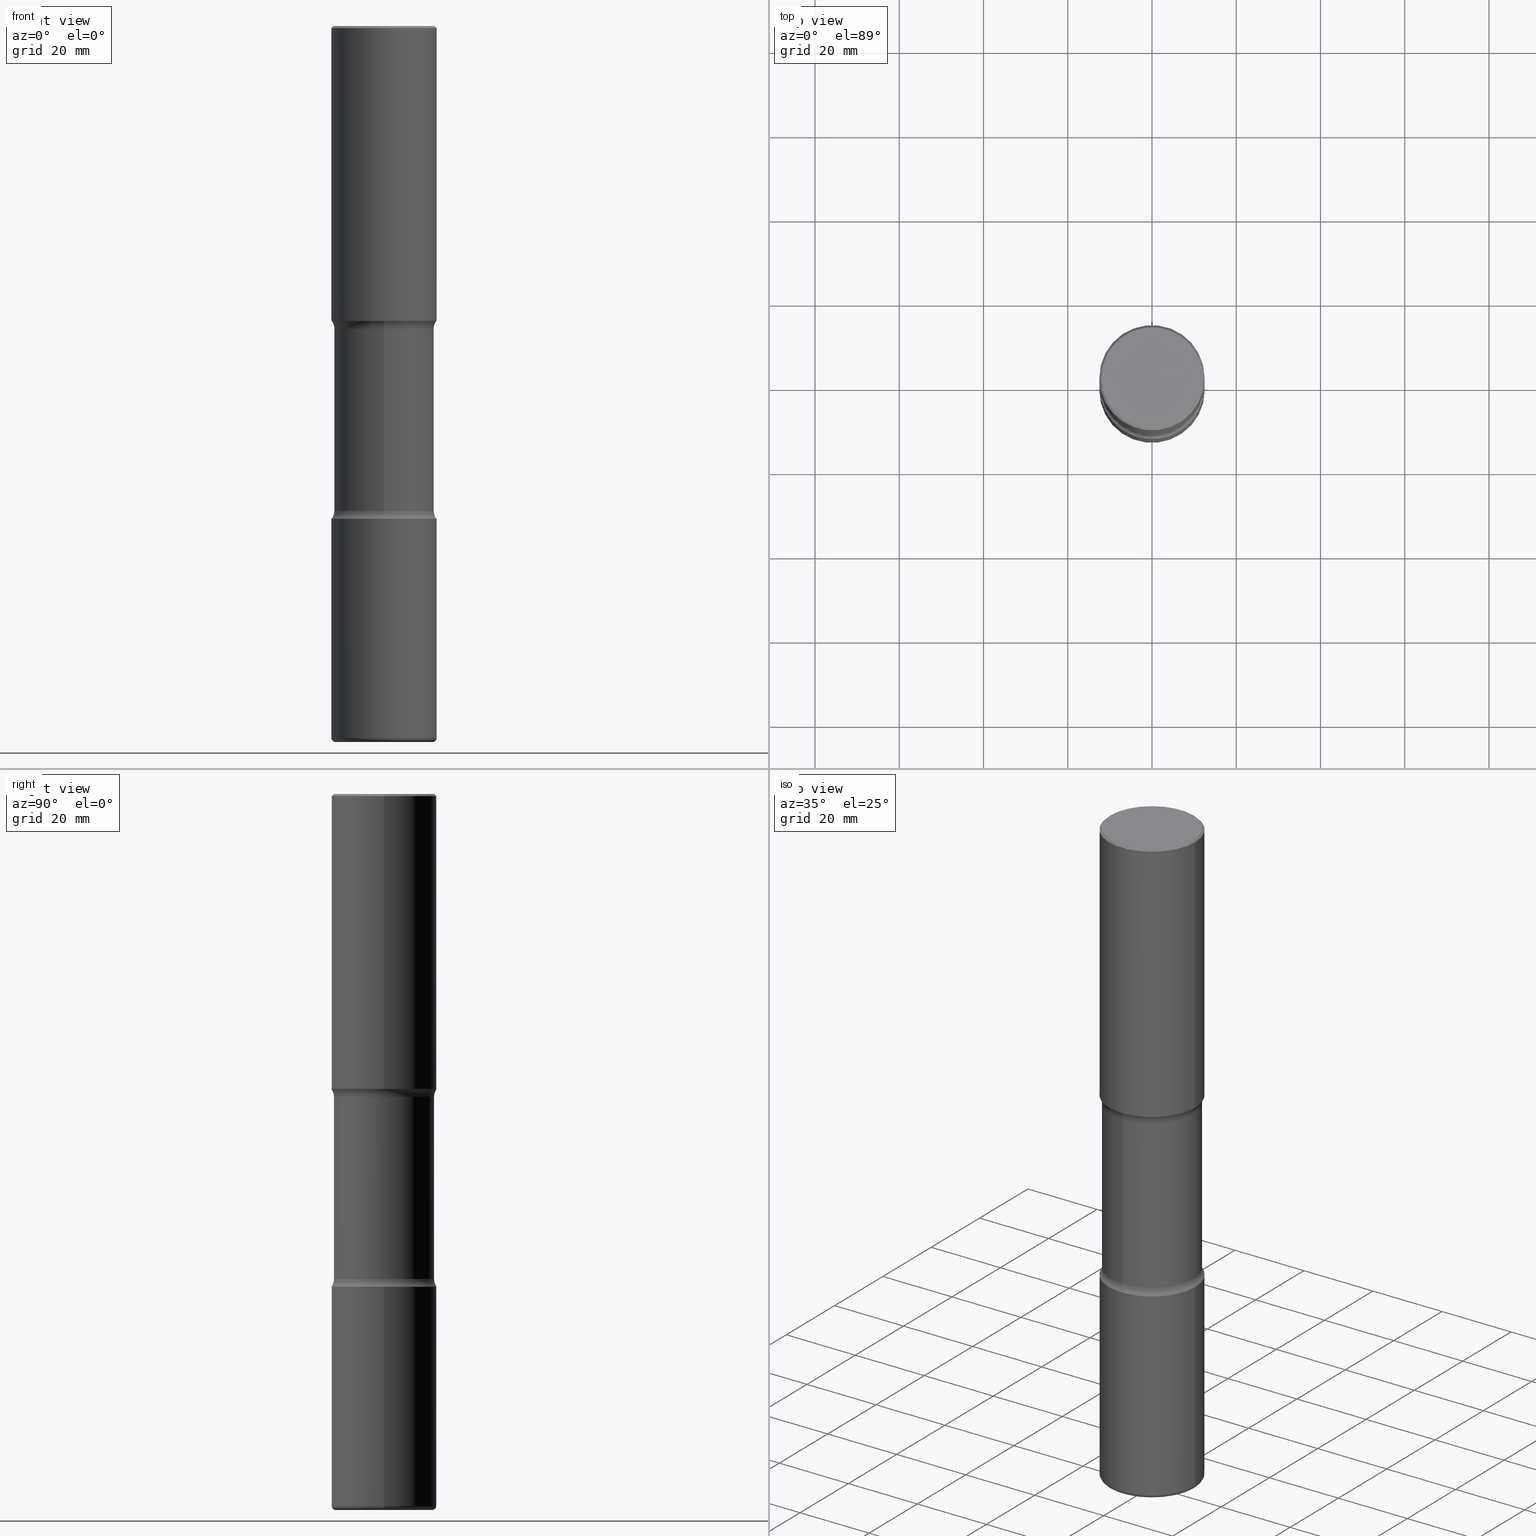
[diagram: canonical four-view strip — front | top / right | iso, engineering-drawing reading convention]
A machine part, canonical four-view strip (front | top / right | iso — engineering-drawing reading convention). The complete STEP part file that produces these views, byte-faithful:
ISO-10303-21;
HEADER;
FILE_DESCRIPTION (( 'STEP AP203' ),
    '1' );
FILE_NAME ('47768.STEP',
    '2024-03-02T08:52:58',
    ( '' ),
    ( '' ),
    'SwSTEP 2.0',
    'SolidWorks 2023',
    '' );
FILE_SCHEMA (( 'CONFIG_CONTROL_DESIGN' ));
ENDSEC;

DATA;
#1 = DATE_TIME_ROLE ( 'classification_date' ) ;
#2 = CARTESIAN_POINT ( 'NONE',  ( -3.376394089603194759E-15, -0.4921500000000101349, -2.755899999999997352 ) ) ;
#3 = DATE_AND_TIME ( #135, #246 ) ;
#4 = CARTESIAN_POINT ( 'NONE',  ( -3.291838451780614217E-15, -0.4675000000000157918, -4.531768949423744530 ) ) ;
#5 = PERSON_AND_ORGANIZATION_ROLE ( 'creator' ) ;
#6 = CARTESIAN_POINT ( 'NONE',  ( -3.131554243005659264E-46, 4.471029511141341874E-32, 1.280553747030123384E-17 ) ) ;
#7 = EDGE_CURVE ( 'NONE', #451, #13, #105, .T. ) ;
#8 = TOROIDAL_SURFACE ( 'NONE', #501, 0.5925000000000002487, 0.1250000000000001943 ) ;
#9 = COORDINATED_UNIVERSAL_TIME_OFFSET ( 5, 0, .BEHIND. ) ;
#10 = CC_DESIGN_SECURITY_CLASSIFICATION ( #46, ( #463 ) ) ;
#11 = DIRECTION ( 'NONE',  ( -1.000000000000000000, 6.982962677686265922E-15, -4.876176775795935793E-29 ) ) ;
#12 = ADVANCED_FACE ( 'NONE', ( #78 ), #295, .T. ) ;
#13 = VERTEX_POINT ( 'NONE', #507 ) ;
#14 = EDGE_CURVE ( 'NONE', #126, #204, #358, .T. ) ;
#15 = PLANE ( 'NONE',  #419 ) ;
#16 = AXIS2_PLACEMENT_3D ( 'NONE', #170, #261, #41 ) ;
#17 = EDGE_CURVE ( 'NONE', #376, #290, #490, .T. ) ;
#18 = FACE_OUTER_BOUND ( 'NONE', #518, .T. ) ;
#19 = AXIS2_PLACEMENT_3D ( 'NONE', #296, #161, #541 ) ;
#20 = VERTEX_POINT ( 'NONE', #547 ) ;
#21 = CARTESIAN_POINT ( 'NONE',  ( -0.4921499999999999209, 3.366835455046432084E-15, -0.02000000000000006981 ) ) ;
#22 = CARTESIAN_POINT ( 'NONE',  ( 1.636727817291649966E-28, -2.336813545274328780E-14, -6.692899999999999849 ) ) ;
#23 = CARTESIAN_POINT ( 'NONE',  ( -0.4721499999999998476, 3.331920641658000829E-15, 1.280553747027805488E-17 ) ) ;
#24 = ORIENTED_EDGE ( 'NONE', *, *, #370, .F. ) ;
#25 = FACE_OUTER_BOUND ( 'NONE', #196, .T. ) ;
#26 = AXIS2_PLACEMENT_3D ( 'NONE', #193, #394, #234 ) ;
#27 = ORIENTED_EDGE ( 'NONE', *, *, #231, .F. ) ;
#28 = DIRECTION ( 'NONE',  ( 6.982962677686266711E-15, 1.000000000000000000, -3.506115072082477581E-15 ) ) ;
#29 = EDGE_LOOP ( 'NONE', ( #545, #459 ) ) ;
#30 = DIRECTION ( 'NONE',  ( -2.445468806185136597E-29, 3.491481338843145583E-15, 1.000000000000000000 ) ) ;
#31 = DIRECTION ( 'NONE',  ( -2.445468806185136597E-29, 3.491481338843145583E-15, 1.000000000000000000 ) ) ;
#32 = ORIENTED_EDGE ( 'NONE', *, *, #235, .T. ) ;
#33 = CARTESIAN_POINT ( 'NONE',  ( 0.000000000000000000, 0.000000000000000000, 0.000000000000000000 ) ) ;
#34 = CLOSED_SHELL ( 'NONE', ( #469, #356, #386, #140, #85, #212 ) ) ;
#35 = CC_DESIGN_PERSON_AND_ORGANIZATION_ASSIGNMENT ( #522, #141, ( #46 ) ) ;
#36 = AXIS2_PLACEMENT_3D ( 'NONE', #154, #195, #188 ) ;
#37 = EDGE_LOOP ( 'NONE', ( #416, #168, #206, #480 ) ) ;
#38 = LOCAL_TIME ( 3, 52, 58.00000000000000000, #379 ) ;
#39 = MECHANICAL_CONTEXT ( 'NONE', #494, 'mechanical' ) ;
#40 = CARTESIAN_POINT ( 'NONE',  ( 1.107980415843712738E-28, -1.582616033701247086E-14, -4.531768949423746307 ) ) ;
#41 = DIRECTION ( 'NONE',  ( 6.982962677686266711E-15, 1.000000000000000000, -3.330506545156064285E-15 ) ) ;
#42 = EDGE_CURVE ( 'NONE', #325, #376, #415, .T. ) ;
#43 = CALENDAR_DATE ( 2024, 2, 3 ) ;
#44 = CARTESIAN_POINT ( 'NONE',  ( -3.376394089603147821E-15, -0.4921500000000163522, -4.606299999999997397 ) ) ;
#45 = CIRCLE ( 'NONE', #137, 0.1250000000000000278 ) ;
#46 = SECURITY_CLASSIFICATION ( '', '', #477 ) ;
#47 = COORDINATED_UNIVERSAL_TIME_OFFSET ( 5, 0, .BEHIND. ) ;
#48 = LINE ( 'NONE', #387, #521 ) ;
#49 = APPROVAL_ROLE ( '' ) ;
#50 = CARTESIAN_POINT ( 'NONE',  ( 0.4921500000000002539, -1.305883850354111701E-14, -2.755899999999998240 ) ) ;
#51 = ORIENTED_EDGE ( 'NONE', *, *, #333, .F. ) ;
#52 = SHAPE_DEFINITION_REPRESENTATION ( #281, #361 ) ;
#53 = EDGE_LOOP ( 'NONE', ( #86, #369 ) ) ;
#54 = DIRECTION ( 'NONE',  ( -2.445468806185136597E-29, 3.491481338843145583E-15, 1.000000000000000000 ) ) ;
#55 = CC_DESIGN_PERSON_AND_ORGANIZATION_ASSIGNMENT ( #214, #366, ( #301 ) ) ;
#56 = CIRCLE ( 'NONE', #435, 0.4921500000000002539 ) ;
#57 = FACE_OUTER_BOUND ( 'NONE', #29, .T. ) ;
#58 = DIRECTION ( 'NONE',  ( 1.000000000000000000, -6.982962677686265922E-15, 4.876006802227160734E-29 ) ) ;
#59 = DIRECTION ( 'NONE',  ( 6.982962677686266711E-15, 1.000000000000000000, -3.443533294061476764E-15 ) ) ;
#60 = AXIS2_PLACEMENT_3D ( 'NONE', #443, #149, #59 ) ;
#61 = FACE_OUTER_BOUND ( 'NONE', #73, .T. ) ;
#62 = AXIS2_PLACEMENT_3D ( 'NONE', #63, #274, #242 ) ;
#63 = CARTESIAN_POINT ( 'NONE',  ( 3.297005828269569180E-15, 0.4721499999999998476, -1.642100145399640064E-15 ) ) ;
#64 = EDGE_LOOP ( 'NONE', ( #458, #334 ) ) ;
#65 = CARTESIAN_POINT ( 'NONE',  ( 0.4921500000000000874, -3.436665081823296565E-15, 2.399810400207970163E-29 ) ) ;
#66 = APPROVAL ( #93, 'UNSPECIFIED' ) ;
#67 = EDGE_LOOP ( 'NONE', ( #502, #438, #441, #550 ) ) ;
#68 = DIRECTION ( 'NONE',  ( -2.445468806185136877E-29, 3.491481338843145188E-15, 1.000000000000000000 ) ) ;
#69 = TOROIDAL_SURFACE ( 'NONE', #297, 0.4527500000000003189, 0.03940000000000026814 ) ;
#70 = AXIS2_PLACEMENT_3D ( 'NONE', #400, #320, #493 ) ;
#71 = CARTESIAN_POINT ( 'NONE',  ( 1.643714159041834644E-28, -2.326808706250185533E-14, -6.692899999999998961 ) ) ;
#72 = EDGE_LOOP ( 'NONE', ( #279, #353, #455, #255 ) ) ;
#73 = EDGE_LOOP ( 'NONE', ( #424, #76, #51, #233 ) ) ;
#74 = EDGE_CURVE ( 'NONE', #13, #164, #482, .T. ) ;
#75 = CARTESIAN_POINT ( 'NONE',  ( -4.064845063679523241E-15, -0.5925000000000161249, -4.531768949423743642 ) ) ;
#76 = ORIENTED_EDGE ( 'NONE', *, *, #525, .T. ) ;
#77 = DIRECTION ( 'NONE',  ( 6.982962677686266711E-15, 1.000000000000000000, -3.443533294061476764E-15 ) ) ;
#78 = FACE_OUTER_BOUND ( 'NONE', #163, .T. ) ;
#79 = ORIENTED_EDGE ( 'NONE', *, *, #445, .F. ) ;
#80 = DIRECTION ( 'NONE',  ( 0.000000000000000000, 0.000000000000000000, 1.000000000000000000 ) ) ;
#81 = DIRECTION ( 'NONE',  ( 1.000000000000000000, -6.982962677686264344E-15, 0.000000000000000000 ) ) ;
#82 = CIRCLE ( 'NONE', #393, 0.4921499999999999209 ) ;
#83 = AXIS2_PLACEMENT_3D ( 'NONE', #157, #555, #77 ) ;
#84 = CARTESIAN_POINT ( 'NONE',  ( 0.4721499999999998476, -3.342703923013974974E-15, 1.280553747032445131E-17 ) ) ;
#85 = ADVANCED_FACE ( 'NONE', ( #215 ), #552, .T. ) ;
#86 = ORIENTED_EDGE ( 'NONE', *, *, #367, .F. ) ;
#87 = EDGE_LOOP ( 'NONE', ( #466, #492, #293, #332 ) ) ;
#88 = PERSON ( 'UNSPECIFIED', 'UNSPECIFIED', 'UNSPECIFIED', ('UNSPECIFIED'), ('UNSPECIFIED'), ('UNSPECIFIED') ) ;
#89 = DATE_AND_TIME ( #310, #38 ) ;
#90 = DIRECTION ( 'NONE',  ( 1.000000000000000000, -6.982962677686265922E-15, 0.000000000000000000 ) ) ;
#91 = CLOSED_SHELL ( 'NONE', ( #442, #422, #531, #411, #106, #201 ) ) ;
#92 = AXIS2_PLACEMENT_3D ( 'NONE', #71, #253, #167 ) ;
#93 = APPROVAL_STATUS ( 'not_yet_approved' ) ;
#94 = CARTESIAN_POINT ( 'NONE',  ( -0.4921500000000000874, 3.496936074043333686E-15, -2.420853904668952350E-29 ) ) ;
#95 = ORIENTED_EDGE ( 'NONE', *, *, #487, .F. ) ;
#96 = CARTESIAN_POINT ( 'NONE',  ( 6.862271303354788236E-29, -9.967546637882530720E-15, -2.830431050576252883 ) ) ;
#97 = VERTEX_POINT ( 'NONE', #84 ) ;
#98 = DIRECTION ( 'NONE',  ( 1.000000000000000000, -6.982962677686270655E-15, 0.000000000000000000 ) ) ;
#99 = AXIS2_PLACEMENT_3D ( 'NONE', #202, #479, #185 ) ;
#100 = CARTESIAN_POINT ( 'NONE',  ( 1.107980415843712738E-28, -1.582616033701247086E-14, -4.531768949423746307 ) ) ;
#101 = EDGE_CURVE ( 'NONE', #251, #243, #538, .T. ) ;
#102 = DIRECTION ( 'NONE',  ( 2.478950746902978790E-29, -3.443533294061476764E-15, -1.000000000000000000 ) ) ;
#103 = CARTESIAN_POINT ( 'NONE',  ( 5.087199727460733624E-29, -3.952184980882990303E-14, -6.692899999999999849 ) ) ;
#104 = MANIFOLD_SOLID_BREP ( 'Body-Move/Copy2[1]', #34 ) ;
#105 = CIRCLE ( 'NONE', #418, 0.4527500000000002633 ) ;
#106 = ADVANCED_FACE ( 'NONE', ( #426 ), #511, .F. ) ;
#107 = CIRCLE ( 'NONE', #381, 0.4921500000000002539 ) ;
#108 = CARTESIAN_POINT ( 'NONE',  ( -0.4527500000000002633, -1.994239411526948461E-14, -6.692899999999999849 ) ) ;
#109 = ORIENTED_EDGE ( 'NONE', *, *, #509, .T. ) ;
#110 = EDGE_CURVE ( 'NONE', #13, #451, #315, .T. ) ;
#111 = DIRECTION ( 'NONE',  ( 2.438088387897960049E-29, -3.491481338843145188E-15, -1.000000000000000000 ) ) ;
#112 = ORIENTED_EDGE ( 'NONE', *, *, #445, .T. ) ;
#113 = DIRECTION ( 'NONE',  ( -6.982962677686266711E-15, -1.000000000000000000, 3.491481338843145583E-15 ) ) ;
#114 = ADVANCED_FACE ( 'NONE', ( #409 ), #8, .F. ) ;
#115 = ORIENTED_EDGE ( 'NONE', *, *, #119, .T. ) ;
#116 = DIRECTION ( 'NONE',  ( -6.982962677686269077E-15, -1.000000000000000000, 0.000000000000000000 ) ) ;
#117 = AXIS2_PLACEMENT_3D ( 'NONE', #282, #299, #162 ) ;
#118 = DIRECTION ( 'NONE',  ( -2.438088387897960049E-29, 3.491481338843145188E-15, 1.000000000000000000 ) ) ;
#119 = EDGE_CURVE ( 'NONE', #251, #305, #178, .T. ) ;
#120 = VERTEX_POINT ( 'NONE', #326 ) ;
#121 = CARTESIAN_POINT ( 'NONE',  ( 0.000000000000000000, 0.000000000000000000, 0.000000000000000000 ) ) ;
#122 = DIRECTION ( 'NONE',  ( 6.982962677686265133E-15, 1.000000000000000000, -3.443533294061477159E-15 ) ) ;
#123 = ORIENTED_EDGE ( 'NONE', *, *, #101, .T. ) ;
#124 = ORIENTED_EDGE ( 'NONE', *, *, #184, .T. ) ;
#125 = CARTESIAN_POINT ( 'NONE',  ( 4.890937612370289799E-31, -6.982962677686315028E-17, -0.02000000000000006981 ) ) ;
#126 = VERTEX_POINT ( 'NONE', #158 ) ;
#127 = DIRECTION ( 'NONE',  ( -2.445468806185136877E-29, 3.491481338843145188E-15, 1.000000000000000000 ) ) ;
#128 = TOROIDAL_SURFACE ( 'NONE', #351, 0.4527500000000003189, 0.03940000000000026814 ) ;
#129 = CC_DESIGN_APPROVAL ( #66, ( #463 ) ) ;
#130 = APPROVAL_ROLE ( '' ) ;
#131 = CARTESIAN_POINT ( 'NONE',  ( 3.436665081823409767E-15, 0.4921499999999841002, -4.606300000000000949 ) ) ;
#132 = DIRECTION ( 'NONE',  ( 2.478950746902979070E-29, -3.443533294061476764E-15, -1.000000000000000000 ) ) ;
#133 = ORIENTED_EDGE ( 'NONE', *, *, #42, .F. ) ;
#134 = EDGE_CURVE ( 'NONE', #305, #359, #559, .T. ) ;
#135 = CALENDAR_DATE ( 2024, 2, 3 ) ;
#136 = LINE ( 'NONE', #341, #529 ) ;
#137 = AXIS2_PLACEMENT_3D ( 'NONE', #307, #471, #430 ) ;
#138 = ADVANCED_FACE ( 'NONE', ( #456 ), #378, .T. ) ;
#139 = VECTOR ( 'NONE', #68, 39.37007874015748143 ) ;
#140 = ADVANCED_FACE ( 'NONE', ( #465 ), #69, .T. ) ;
#141 = PERSON_AND_ORGANIZATION_ROLE ( 'classification_officer' ) ;
#142 = CARTESIAN_POINT ( 'NONE',  ( 0.4921500000000002539, -1.951947557293647774E-14, -4.606299999999999173 ) ) ;
#143 = DIRECTION ( 'NONE',  ( -2.445468806185136597E-29, 3.491481338843145583E-15, 1.000000000000000000 ) ) ;
#144 = ORIENTED_EDGE ( 'NONE', *, *, #184, .F. ) ;
#145 = PLANE ( 'NONE',  #62 ) ;
#146 = CIRCLE ( 'NONE', #549, 0.4721499999999998476 ) ;
#147 = CIRCLE ( 'NONE', #322, 0.1250000000000000278 ) ;
#148 = DIRECTION ( 'NONE',  ( -2.445468806185136597E-29, 3.491481338843145583E-15, 1.000000000000000000 ) ) ;
#149 = DIRECTION ( 'NONE',  ( 2.478950746902978790E-29, -3.443533294061476764E-15, -1.000000000000000000 ) ) ;
#150 = CYLINDRICAL_SURFACE ( 'NONE', #70, 0.4921500000000000874 ) ;
#151 = EDGE_LOOP ( 'NONE', ( #496, #115, #245, #270 ) ) ;
#152 = EDGE_CURVE ( 'NONE', #120, #164, #406, .T. ) ;
#153 = AXIS2_PLACEMENT_3D ( 'NONE', #336, #118, #248 ) ;
#154 = CARTESIAN_POINT ( 'NONE',  ( 1.627092670195280394E-28, -2.323057108799286859E-14, -6.653499999999999304 ) ) ;
#155 = CIRCLE ( 'NONE', #316, 0.1250000000000001665 ) ;
#156 = ORIENTED_EDGE ( 'NONE', *, *, #191, .T. ) ;
#157 = CARTESIAN_POINT ( 'NONE',  ( 6.826348879337702763E-29, -1.001898959365239917E-14, -2.830431050576252883 ) ) ;
#158 = CARTESIAN_POINT ( 'NONE',  ( -0.4921500000000002539, -1.349065450204005425E-15, -2.755899999999998240 ) ) ;
#159 = DESIGN_CONTEXT ( 'detailed design', #180, 'design' ) ;
#160 = VERTEX_POINT ( 'NONE', #2 ) ;
#161 = DIRECTION ( 'NONE',  ( 2.478950746902978790E-29, -3.443533294061476764E-15, -1.000000000000000000 ) ) ;
#162 = DIRECTION ( 'NONE',  ( 1.000000000000000000, -6.982962677686266711E-15, 0.000000000000000000 ) ) ;
#163 = EDGE_LOOP ( 'NONE', ( #171, #446, #79, #144 ) ) ;
#164 = VERTEX_POINT ( 'NONE', #222 ) ;
#165 = VECTOR ( 'NONE', #392, 39.37007874015748143 ) ;
#166 = APPROVAL_PERSON_ORGANIZATION ( #229, #258, #49 ) ;
#167 = DIRECTION ( 'NONE',  ( 6.982962677686265922E-15, 1.000000000000000000, -2.337410048054985186E-15 ) ) ;
#168 = ORIENTED_EDGE ( 'NONE', *, *, #402, .F. ) ;
#169 = LENGTH_MEASURE_WITH_UNIT ( LENGTH_MEASURE( 0.02539999999999999897 ), #504 );
#170 = CARTESIAN_POINT ( 'NONE',  ( 1.126456296193059450E-28, -1.608281049111318039E-14, -4.606299999999999173 ) ) ;
#171 = ORIENTED_EDGE ( 'NONE', *, *, #402, .T. ) ;
#172 = EDGE_CURVE ( 'NONE', #126, #376, #431, .T. ) ;
#173 = DIRECTION ( 'NONE',  ( 2.478950746902978790E-29, -3.443533294061476764E-15, -1.000000000000000000 ) ) ;
#174 = EDGE_CURVE ( 'NONE', #20, #200, #107, .T. ) ;
#175 = PERSON_AND_ORGANIZATION ( #88, #523 ) ;
#176 = DIRECTION ( 'NONE',  ( -2.445468806185136597E-29, 3.491481338843145583E-15, 1.000000000000000000 ) ) ;
#177 = CIRCLE ( 'NONE', #197, 0.4721499999999998476 ) ;
#178 = CIRCLE ( 'NONE', #209, 0.1250000000000001665 ) ;
#179 = APPROVAL_DATE_TIME ( #89, #464 ) ;
#180 = APPLICATION_CONTEXT ( 'configuration controlled 3d designs of mechanical parts and assemblies' ) ;
#181 = DIRECTION ( 'NONE',  ( 1.000000000000000000, -6.982962677686265922E-15, 4.876006802227160734E-29 ) ) ;
#182 = EDGE_LOOP ( 'NONE', ( #495, #417, #124, #284 ) ) ;
#183 = DIRECTION ( 'NONE',  ( 2.438088387897960049E-29, -3.491481338843145188E-15, -1.000000000000000000 ) ) ;
#184 = EDGE_CURVE ( 'NONE', #192, #359, #225, .T. ) ;
#185 = DIRECTION ( 'NONE',  ( 1.000000000000000000, -6.982962677686262766E-15, 0.000000000000000000 ) ) ;
#186 = CC_DESIGN_APPROVAL ( #464, ( #46 ) ) ;
#187 = DIRECTION ( 'NONE',  ( -2.445468806185136877E-29, 3.491481338843145188E-15, 1.000000000000000000 ) ) ;
#188 = DIRECTION ( 'NONE',  ( 1.000000000000000000, -6.982962677686262766E-15, 0.000000000000000000 ) ) ;
#189 = VECTOR ( 'NONE', #368, 39.37007874015748143 ) ;
#190 = DIRECTION ( 'NONE',  ( 6.982962677686266711E-15, 1.000000000000000000, -3.506115072082477581E-15 ) ) ;
#191 = EDGE_CURVE ( 'NONE', #97, #325, #146, .T. ) ;
#192 = VERTEX_POINT ( 'NONE', #515 ) ;
#193 = CARTESIAN_POINT ( 'NONE',  ( 1.103460862120198560E-28, -1.589088291870342293E-14, -4.531768949423746307 ) ) ;
#194 = DIRECTION ( 'NONE',  ( -2.445468806185136597E-29, 3.491481338843145583E-15, 1.000000000000000000 ) ) ;
#195 = DIRECTION ( 'NONE',  ( -2.445468806185136597E-29, 3.491481338843145583E-15, 1.000000000000000000 ) ) ;
#196 = EDGE_LOOP ( 'NONE', ( #512, #24, #410, #289 ) ) ;
#197 = AXIS2_PLACEMENT_3D ( 'NONE', #530, #148, #58 ) ;
#198 = DIRECTION ( 'NONE',  ( -1.000000000000000000, 7.105427357600976615E-15, 0.000000000000000000 ) ) ;
#199 = AXIS2_PLACEMENT_3D ( 'NONE', #238, #536, #483 ) ;
#200 = VERTEX_POINT ( 'NONE', #142 ) ;
#201 = ADVANCED_FACE ( 'NONE', ( #311 ), #389, .T. ) ;
#202 = CARTESIAN_POINT ( 'NONE',  ( 1.627092670195280394E-28, -2.323057108799286859E-14, -6.653499999999999304 ) ) ;
#203 = UNCERTAINTY_MEASURE_WITH_UNIT (LENGTH_MEASURE( 1.000000000000000082E-05 ), #287, 'distance_accuracy_value', 'NONE');
#204 = VERTEX_POINT ( 'NONE', #50 ) ;
#205 = DIRECTION ( 'NONE',  ( 1.000000000000000000, -6.982962677686265133E-15, 4.883557194083112901E-29 ) ) ;
#206 = ORIENTED_EDGE ( 'NONE', *, *, #318, .T. ) ;
#207 = EDGE_LOOP ( 'NONE', ( #254, #508 ) ) ;
#208 = CARTESIAN_POINT ( 'NONE',  ( 0.4921500000000002539, -3.436665081823297749E-15, 2.399810400207971004E-29 ) ) ;
#209 = AXIS2_PLACEMENT_3D ( 'NONE', #75, #292, #421 ) ;
#210 =( GEOMETRIC_REPRESENTATION_CONTEXT ( 3 ) GLOBAL_UNCERTAINTY_ASSIGNED_CONTEXT ( ( #203 ) ) GLOBAL_UNIT_ASSIGNED_CONTEXT ( ( #287, #335, #453 ) ) REPRESENTATION_CONTEXT ( 'NONE', 'WORKASPACE' ) );
#211 = CARTESIAN_POINT ( 'NONE',  ( 1.636727817291649966E-28, -2.336813545274328780E-14, -6.692899999999999849 ) ) ;
#212 = ADVANCED_FACE ( 'NONE', ( #558 ), #230, .F. ) ;
#213 = EDGE_LOOP ( 'NONE', ( #535, #543, #444, #112 ) ) ;
#214 = PERSON_AND_ORGANIZATION ( #88, #523 ) ;
#215 = FACE_OUTER_BOUND ( 'NONE', #497, .T. ) ;
#216 = CC_DESIGN_DATE_AND_TIME_ASSIGNMENT ( #557, #1, ( #46 ) ) ;
#217 = CC_DESIGN_PERSON_AND_ORGANIZATION_ASSIGNMENT ( #391, #306, ( #463 ) ) ;
#218 = DIRECTION ( 'NONE',  ( -2.445468806185136597E-29, 3.491481338843145583E-15, 1.000000000000000000 ) ) ;
#219 = DIMENSIONAL_EXPONENTS ( 1.000000000000000000, 0.000000000000000000, 0.000000000000000000, 0.000000000000000000, 0.000000000000000000, 0.000000000000000000, 0.000000000000000000 ) ;
#220 = EDGE_CURVE ( 'NONE', #413, #192, #272, .T. ) ;
#221 = DATE_AND_TIME ( #467, #286 ) ;
#222 = CARTESIAN_POINT ( 'NONE',  ( 0.4921500000000003650, -2.666723616981616910E-14, -6.653499999999999304 ) ) ;
#223 = VECTOR ( 'NONE', #187, 39.37007874015748143 ) ;
#224 = TOROIDAL_SURFACE ( 'NONE', #83, 0.5924999999999999156, 0.1250000000000000278 ) ;
#225 = LINE ( 'NONE', #384, #165 ) ;
#226 = ORIENTED_EDGE ( 'NONE', *, *, #370, .T. ) ;
#227 = PERSON_AND_ORGANIZATION ( #88, #523 ) ;
#228 = DIRECTION ( 'NONE',  ( 2.478950746902978790E-29, -3.443533294061476764E-15, -1.000000000000000000 ) ) ;
#229 = PERSON_AND_ORGANIZATION ( #88, #523 ) ;
#230 = PLANE ( 'NONE',  #484 ) ;
#231 = EDGE_CURVE ( 'NONE', #290, #376, #82, .T. ) ;
#232 = AXIS2_PLACEMENT_3D ( 'NONE', #40, #500, #28 ) ;
#233 = ORIENTED_EDGE ( 'NONE', *, *, #74, .F. ) ;
#234 = DIRECTION ( 'NONE',  ( 6.982962677686265133E-15, 1.000000000000000000, -3.443533294061477159E-15 ) ) ;
#235 = EDGE_CURVE ( 'NONE', #120, #20, #433, .T. ) ;
#236 = DIRECTION ( 'NONE',  ( -1.000000000000000000, 6.982962677686265922E-15, -4.876176775795935793E-29 ) ) ;
#237 = EDGE_CURVE ( 'NONE', #200, #20, #473, .T. ) ;
#238 = CARTESIAN_POINT ( 'NONE',  ( 4.890937612370289799E-31, -6.982962677686315028E-17, -0.02000000000000006981 ) ) ;
#239 = LOCAL_TIME ( 3, 52, 58.00000000000000000, #47 ) ;
#240 = ADVANCED_FACE ( 'NONE', ( #57 ), #264, .F. ) ;
#241 = CARTESIAN_POINT ( 'NONE',  ( 3.264535051818439654E-15, 0.4674999999999840949, -4.531768949423748083 ) ) ;
#242 = DIRECTION ( 'NONE',  ( -1.000000000000000000, 6.982962677686265922E-15, -4.876176775795935793E-29 ) ) ;
#243 = VERTEX_POINT ( 'NONE', #131 ) ;
#244 = DIRECTION ( 'NONE',  ( 2.478950746902978790E-29, -3.443533294061476764E-15, -1.000000000000000000 ) ) ;
#245 = ORIENTED_EDGE ( 'NONE', *, *, #134, .T. ) ;
#246 = LOCAL_TIME ( 3, 52, 58.00000000000000000, #516 ) ;
#247 = DIRECTION ( 'NONE',  ( 7.105427357601001859E-15, 1.000000000000000000, -3.491481338843145583E-15 ) ) ;
#248 = DIRECTION ( 'NONE',  ( 1.000000000000000000, -6.982962677686265922E-15, 4.876176775795935793E-29 ) ) ;
#249 = CARTESIAN_POINT ( 'NONE',  ( 0.000000000000000000, 0.000000000000000000, 0.000000000000000000 ) ) ;
#250 = CARTESIAN_POINT ( 'NONE',  ( 1.627092670195280394E-28, -2.323057108799286859E-14, -6.653499999999999304 ) ) ;
#251 = VERTEX_POINT ( 'NONE', #44 ) ;
#252 = LINE ( 'NONE', #208, #139 ) ;
#253 = DIRECTION ( 'NONE',  ( 2.478950746902978790E-29, -3.443533294061476764E-15, -1.000000000000000000 ) ) ;
#254 = ORIENTED_EDGE ( 'NONE', *, *, #110, .F. ) ;
#255 = ORIENTED_EDGE ( 'NONE', *, *, #152, .F. ) ;
#256 = DIRECTION ( 'NONE',  ( 1.000000000000000000, 0.000000000000000000, 0.000000000000000000 ) ) ;
#257 = AXIS2_PLACEMENT_3D ( 'NONE', #375, #113, #542 ) ;
#258 = APPROVAL ( #300, 'UNSPECIFIED' ) ;
#259 = AXIS2_PLACEMENT_3D ( 'NONE', #121, #30, #499 ) ;
#260 = PERSON_AND_ORGANIZATION ( #88, #523 ) ;
#261 = DIRECTION ( 'NONE',  ( 2.478950746902978790E-29, -3.443533294061476764E-15, -1.000000000000000000 ) ) ;
#262 = CARTESIAN_POINT ( 'NONE',  ( 6.677512499861319986E-29, -9.710896483781819618E-15, -2.755899999999998684 ) ) ;
#263 = EDGE_CURVE ( 'NONE', #160, #505, #440, .T. ) ;
#264 = PLANE ( 'NONE',  #285 ) ;
#265 = AXIS2_PLACEMENT_3D ( 'NONE', #556, #173, #371 ) ;
#266 = VECTOR ( 'NONE', #127, 39.37007874015748143 ) ;
#267 = DIRECTION ( 'NONE',  ( 1.000000000000000000, -6.982962677686265922E-15, 4.876176775795935793E-29 ) ) ;
#268 = EDGE_CURVE ( 'NONE', #413, #305, #136, .T. ) ;
#269 = DIRECTION ( 'NONE',  ( -2.445468806185136597E-29, 3.491481338843145583E-15, 1.000000000000000000 ) ) ;
#270 = ORIENTED_EDGE ( 'NONE', *, *, #548, .F. ) ;
#271 = CARTESIAN_POINT ( 'NONE',  ( 1.126456296193059450E-28, -1.608281049111318039E-14, -4.606299999999999173 ) ) ;
#272 = CIRCLE ( 'NONE', #450, 0.4674999999999999156 ) ;
#273 = DIRECTION ( 'NONE',  ( -2.445468806185136597E-29, 3.491481338843145583E-15, 1.000000000000000000 ) ) ;
#274 = DIRECTION ( 'NONE',  ( 2.438088387897960049E-29, -3.491481338843145188E-15, -1.000000000000000000 ) ) ;
#275 = FACE_OUTER_BOUND ( 'NONE', #427, .T. ) ;
#276 = TOROIDAL_SURFACE ( 'NONE', #60, 0.5924999999999999156, 0.1250000000000000278 ) ;
#277 = APPROVAL_PERSON_ORGANIZATION ( #260, #66, #130 ) ;
#278 = ORIENTED_EDGE ( 'NONE', *, *, #333, .T. ) ;
#279 = ORIENTED_EDGE ( 'NONE', *, *, #525, .F. ) ;
#280 = DIRECTION ( 'NONE',  ( 2.445468806185136597E-29, -3.491481338843145583E-15, -1.000000000000000000 ) ) ;
#281 = PRODUCT_DEFINITION_SHAPE ( 'NONE', 'NONE',  #313 ) ;
#282 = CARTESIAN_POINT ( 'NONE',  ( 6.739467482965614869E-29, -9.622173421717819657E-15, -2.755899999999998240 ) ) ;
#283 = MANIFOLD_SOLID_BREP ( 'Body-Move/Copy2[2]', #91 ) ;
#284 = ORIENTED_EDGE ( 'NONE', *, *, #134, .F. ) ;
#285 = AXIS2_PLACEMENT_3D ( 'NONE', #380, #517, #520 ) ;
#286 = LOCAL_TIME ( 3, 52, 58.00000000000000000, #9 ) ;
#287 =( CONVERSION_BASED_UNIT ( 'INCH', #169 ) LENGTH_UNIT ( ) NAMED_UNIT ( #219 ) );
#288 = CARTESIAN_POINT ( 'NONE',  ( 1.103460862120198560E-28, -1.589088291870342293E-14, -4.531768949423746307 ) ) ;
#289 = ORIENTED_EDGE ( 'NONE', *, *, #17, .T. ) ;
#290 = VERTEX_POINT ( 'NONE', #304 ) ;
#291 = FACE_OUTER_BOUND ( 'NONE', #37, .T. ) ;
#292 = DIRECTION ( 'NONE',  ( 1.000000000000000000, -6.860497997771530774E-15, 4.841386073819815477E-29 ) ) ;
#293 = ORIENTED_EDGE ( 'NONE', *, *, #263, .T. ) ;
#294 = APPLICATION_PROTOCOL_DEFINITION ( 'international standard', 'config_control_design', 1994, #494 ) ;
#295 = CYLINDRICAL_SURFACE ( 'NONE', #92, 0.4674999999999998601 ) ;
#296 = CARTESIAN_POINT ( 'NONE',  ( 1.126456296193059450E-28, -1.608281049111318039E-14, -4.606299999999999173 ) ) ;
#297 = AXIS2_PLACEMENT_3D ( 'NONE', #250, #31, #205 ) ;
#298 = AXIS2_PLACEMENT_3D ( 'NONE', #506, #247, #198 ) ;
#299 = DIRECTION ( 'NONE',  ( -2.445468806185136597E-29, 3.491481338843145583E-15, 1.000000000000000000 ) ) ;
#300 = APPROVAL_STATUS ( 'not_yet_approved' ) ;
#301 = PRODUCT ( '47768', '47768', '', ( #39 ) ) ;
#302 = DIRECTION ( 'NONE',  ( -2.445468806185136877E-29, 3.491481338843145188E-15, 1.000000000000000000 ) ) ;
#303 = PERSON_AND_ORGANIZATION ( #88, #523 ) ;
#304 = CARTESIAN_POINT ( 'NONE',  ( 0.4921499999999999209, -3.446223716380121955E-15, -0.02000000000000006981 ) ) ;
#305 = VERTEX_POINT ( 'NONE', #4 ) ;
#306 = PERSON_AND_ORGANIZATION_ROLE ( 'design_supplier' ) ;
#307 = CARTESIAN_POINT ( 'NONE',  ( 4.137405386529180395E-15, 0.5924999999999898126, -2.830431050576255103 ) ) ;
#308 = AXIS2_PLACEMENT_3D ( 'NONE', #262, #476, #428 ) ;
#309 = AXIS2_PLACEMENT_3D ( 'NONE', #317, #102, #190 ) ;
#310 = CALENDAR_DATE ( 2024, 2, 3 ) ;
#311 = FACE_OUTER_BOUND ( 'NONE', #67, .T. ) ;
#312 = CC_DESIGN_DATE_AND_TIME_ASSIGNMENT ( #221, #432, ( #313 ) ) ;
#313 = PRODUCT_DEFINITION ( 'UNKNOWN', '', #463, #159 ) ;
#314 = DIRECTION ( 'NONE',  ( -6.982962677686265922E-15, -1.000000000000000000, 3.443533294061476764E-15 ) ) ;
#315 = CIRCLE ( 'NONE', #462, 0.4527500000000002633 ) ;
#316 = AXIS2_PLACEMENT_3D ( 'NONE', #414, #448, #116 ) ;
#317 = CARTESIAN_POINT ( 'NONE',  ( 6.862271303354788236E-29, -9.967546637882530720E-15, -2.830431050576252883 ) ) ;
#318 = EDGE_CURVE ( 'NONE', #192, #505, #45, .T. ) ;
#319 = DIRECTION ( 'NONE',  ( 1.000000000000000000, -6.982962677686265133E-15, 4.883557194083112901E-29 ) ) ;
#320 = DIRECTION ( 'NONE',  ( -2.445468806185136597E-29, 3.491481338843145583E-15, 1.000000000000000000 ) ) ;
#321 = AXIS2_PLACEMENT_3D ( 'NONE', #125, #544, #412 ) ;
#322 = AXIS2_PLACEMENT_3D ( 'NONE', #498, #510, #460 ) ;
#323 = EDGE_CURVE ( 'NONE', #97, #290, #48, .T. ) ;
#324 = PLANE ( 'NONE',  #346 ) ;
#325 = VERTEX_POINT ( 'NONE', #23 ) ;
#326 = CARTESIAN_POINT ( 'NONE',  ( -0.4921500000000003650, -1.973363501394953490E-14, -6.653499999999999304 ) ) ;
#327 = ADVANCED_FACE ( 'NONE', ( #436 ), #276, .F. ) ;
#328 = CLOSED_SHELL ( 'NONE', ( #12, #114, #327, #553, #240, #390, #399, #138 ) ) ;
#329 = AXIS2_PLACEMENT_3D ( 'NONE', #478, #176, #267 ) ;
#330 = CARTESIAN_POINT ( 'NONE',  ( 4.890937612370289799E-31, -6.982962677686315028E-17, -0.02000000000000006981 ) ) ;
#331 = DIRECTION ( 'NONE',  ( -2.445468806185136597E-29, 3.491481338843145583E-15, 1.000000000000000000 ) ) ;
#332 = ORIENTED_EDGE ( 'NONE', *, *, #318, .F. ) ;
#333 = EDGE_CURVE ( 'NONE', #164, #120, #374, .T. ) ;
#334 = ORIENTED_EDGE ( 'NONE', *, *, #174, .T. ) ;
#335 =( NAMED_UNIT ( * ) PLANE_ANGLE_UNIT ( ) SI_UNIT ( $, .RADIAN. ) );
#336 = CARTESIAN_POINT ( 'NONE',  ( 6.739467482965614869E-29, -9.622173421717819657E-15, -2.755899999999998240 ) ) ;
#337 = CARTESIAN_POINT ( 'NONE',  ( -0.4921499999999999209, 3.366835455046432084E-15, -0.02000000000000006981 ) ) ;
#338 = CIRCLE ( 'NONE', #309, 0.4674999999999999156 ) ;
#339 = CARTESIAN_POINT ( 'NONE',  ( 4.890937612370289799E-31, -6.982962677686315028E-17, -0.02000000000000006981 ) ) ;
#340 = APPROVAL_DATE_TIME ( #385, #258 ) ;
#341 = CARTESIAN_POINT ( 'NONE',  ( -3.207282813958025392E-15, -0.4675000000000231748, -6.692899999999998073 ) ) ;
#342 = ORIENTED_EDGE ( 'NONE', *, *, #152, .T. ) ;
#343 = APPLICATION_PROTOCOL_DEFINITION ( 'international standard', 'config_control_design', 1994, #180 ) ;
#344 = CARTESIAN_POINT ( 'NONE',  ( 1.126456296193059450E-28, -1.608281049111318039E-14, -4.606299999999999173 ) ) ;
#345 = CARTESIAN_POINT ( 'NONE',  ( 1.126456296193059450E-28, -1.608281049111318039E-14, -4.606299999999999173 ) ) ;
#346 = AXIS2_PLACEMENT_3D ( 'NONE', #103, #111, #236 ) ;
#347 = CONICAL_SURFACE ( 'NONE', #199, 0.4921499999999999209, 0.7853981633974477239 ) ;
#348 = CC_DESIGN_PERSON_AND_ORGANIZATION_ASSIGNMENT ( #303, #5, ( #463 ) ) ;
#349 = CARTESIAN_POINT ( 'NONE',  ( 1.126456296193059450E-28, -1.608281049111318039E-14, -4.606299999999999173 ) ) ;
#350 = DIRECTION ( 'NONE',  ( 0.7071067811865471286, -7.319954787623254468E-15, -0.7071067811865479058 ) ) ;
#351 = AXIS2_PLACEMENT_3D ( 'NONE', #395, #273, #319 ) ;
#352 = DIRECTION ( 'NONE',  ( 2.478950746902978790E-29, -3.443533294061476764E-15, -1.000000000000000000 ) ) ;
#353 = ORIENTED_EDGE ( 'NONE', *, *, #7, .T. ) ;
#354 = EDGE_LOOP ( 'NONE', ( #554, #532, #534, #133 ) ) ;
#355 = FACE_OUTER_BOUND ( 'NONE', #481, .T. ) ;
#356 = ADVANCED_FACE ( 'NONE', ( #61 ), #128, .T. ) ;
#357 = FACE_OUTER_BOUND ( 'NONE', #354, .T. ) ;
#358 = CIRCLE ( 'NONE', #117, 0.4921500000000002539 ) ;
#359 = VERTEX_POINT ( 'NONE', #241 ) ;
#360 = AXIS2_PLACEMENT_3D ( 'NONE', #344, #143, #434 ) ;
#361 = ADVANCED_BREP_SHAPE_REPRESENTATION ( '47768', ( #104, #283, #457, #475 ), #210 ) ;
#362 = PRODUCT_RELATED_PRODUCT_CATEGORY ( 'detail', '', ( #301 ) ) ;
#363 = CIRCLE ( 'NONE', #485, 0.4674999999999999156 ) ;
#364 = CARTESIAN_POINT ( 'NONE',  ( 6.677512499861319986E-29, -9.710896483781819618E-15, -2.755899999999998684 ) ) ;
#365 = ORIENTED_EDGE ( 'NONE', *, *, #487, .T. ) ;
#366 = PERSON_AND_ORGANIZATION_ROLE ( 'design_owner' ) ;
#367 = EDGE_CURVE ( 'NONE', #204, #126, #56, .T. ) ;
#368 = DIRECTION ( 'NONE',  ( -0.7071067811865471286, 2.468850131082252722E-15, -0.7071067811865479058 ) ) ;
#369 = ORIENTED_EDGE ( 'NONE', *, *, #14, .F. ) ;
#370 = EDGE_CURVE ( 'NONE', #325, #97, #177, .T. ) ;
#371 = DIRECTION ( 'NONE',  ( 6.982962677686265922E-15, 1.000000000000000000, -2.337410048054985186E-15 ) ) ;
#372 = ORIENTED_EDGE ( 'NONE', *, *, #514, .F. ) ;
#373 = ORIENTED_EDGE ( 'NONE', *, *, #174, .F. ) ;
#374 = CIRCLE ( 'NONE', #36, 0.4921500000000001984 ) ;
#375 = CARTESIAN_POINT ( 'NONE',  ( 0.4527500000000003189, -2.639210744031532752E-14, -6.653499999999999304 ) ) ;
#376 = VERTEX_POINT ( 'NONE', #21 ) ;
#377 = LINE ( 'NONE', #65, #266 ) ;
#378 = CYLINDRICAL_SURFACE ( 'NONE', #265, 0.4674999999999998601 ) ;
#379 = COORDINATED_UNIVERSAL_TIME_OFFSET ( 5, 0, .BEHIND. ) ;
#380 = CARTESIAN_POINT ( 'NONE',  ( 4.603020045655095245E-29, -1.268168775098301850E-14, -2.755899999999998684 ) ) ;
#381 = AXIS2_PLACEMENT_3D ( 'NONE', #345, #54, #98 ) ;
#382 = APPROVAL_DATE_TIME ( #3, #66 ) ;
#383 = CIRCLE ( 'NONE', #298, 0.03940000000000026814 ) ;
#384 = CARTESIAN_POINT ( 'NONE',  ( 3.264535051818492903E-15, 0.4674999999999766009, -6.692899999999999849 ) ) ;
#385 = DATE_AND_TIME ( #519, #239 ) ;
#386 = ADVANCED_FACE ( 'NONE', ( #489 ), #324, .T. ) ;
#387 = CARTESIAN_POINT ( 'NONE',  ( 0.4921499999999999209, -3.446223716380121955E-15, -0.02000000000000006981 ) ) ;
#388 = PERSON_AND_ORGANIZATION_ROLE ( 'creator' ) ;
#389 = CYLINDRICAL_SURFACE ( 'NONE', #329, 0.4921500000000000874 ) ;
#390 = ADVANCED_FACE ( 'NONE', ( #18 ), #15, .F. ) ;
#391 = PERSON_AND_ORGANIZATION ( #88, #523 ) ;
#392 = DIRECTION ( 'NONE',  ( 2.478950746902979070E-29, -3.443533294061476764E-15, -1.000000000000000000 ) ) ;
#393 = AXIS2_PLACEMENT_3D ( 'NONE', #339, #269, #90 ) ;
#394 = DIRECTION ( 'NONE',  ( 2.478950746902978790E-29, -3.443533294061476764E-15, -1.000000000000000000 ) ) ;
#395 = CARTESIAN_POINT ( 'NONE',  ( 1.627092670195280394E-28, -2.323057108799286859E-14, -6.653499999999999304 ) ) ;
#396 = FACE_OUTER_BOUND ( 'NONE', #540, .T. ) ;
#397 = VECTOR ( 'NONE', #302, 39.37007874015748143 ) ;
#398 = DIRECTION ( 'NONE',  ( 1.000000000000000000, -6.982962677686266711E-15, 0.000000000000000000 ) ) ;
#399 = ADVANCED_FACE ( 'NONE', ( #533 ), #513, .F. ) ;
#400 = CARTESIAN_POINT ( 'NONE',  ( 0.000000000000000000, 0.000000000000000000, 0.000000000000000000 ) ) ;
#401 = CC_DESIGN_PERSON_AND_ORGANIZATION_ASSIGNMENT ( #227, #388, ( #313 ) ) ;
#402 = EDGE_CURVE ( 'NONE', #192, #413, #338, .T. ) ;
#403 = ORIENTED_EDGE ( 'NONE', *, *, #235, .F. ) ;
#404 = CARTESIAN_POINT ( 'NONE',  ( 3.436665081823365591E-15, 0.4921499999999907060, -2.755900000000000460 ) ) ;
#405 = ORIENTED_EDGE ( 'NONE', *, *, #367, .T. ) ;
#406 = CIRCLE ( 'NONE', #99, 0.4921500000000001984 ) ;
#407 = APPROVAL_PERSON_ORGANIZATION ( #175, #464, #470 ) ;
#408 = DIRECTION ( 'NONE',  ( 6.982962677686265922E-15, 1.000000000000000000, -3.330506545156063496E-15 ) ) ;
#409 = FACE_OUTER_BOUND ( 'NONE', #151, .T. ) ;
#410 = ORIENTED_EDGE ( 'NONE', *, *, #42, .T. ) ;
#411 = ADVANCED_FACE ( 'NONE', ( #355 ), #145, .F. ) ;
#412 = DIRECTION ( 'NONE',  ( 1.000000000000000000, -6.982962677686265922E-15, 0.000000000000000000 ) ) ;
#413 = VERTEX_POINT ( 'NONE', #528 ) ;
#414 = CARTESIAN_POINT ( 'NONE',  ( 4.137405386529224571E-15, 0.5924999999999843725, -4.531768949423748083 ) ) ;
#415 = LINE ( 'NONE', #337, #189 ) ;
#416 = ORIENTED_EDGE ( 'NONE', *, *, #472, .F. ) ;
#417 = ORIENTED_EDGE ( 'NONE', *, *, #220, .T. ) ;
#418 = AXIS2_PLACEMENT_3D ( 'NONE', #22, #194, #449 ) ;
#419 = AXIS2_PLACEMENT_3D ( 'NONE', #349, #437, #314 ) ;
#420 = CC_DESIGN_APPROVAL ( #258, ( #313 ) ) ;
#421 = DIRECTION ( 'NONE',  ( 6.860497997771532351E-15, 1.000000000000000000, 0.000000000000000000 ) ) ;
#422 = ADVANCED_FACE ( 'NONE', ( #357 ), #347, .T. ) ;
#423 = ORIENTED_EDGE ( 'NONE', *, *, #237, .F. ) ;
#424 = ORIENTED_EDGE ( 'NONE', *, *, #110, .T. ) ;
#425 = APPROVAL_STATUS ( 'not_yet_approved' ) ;
#426 = FACE_OUTER_BOUND ( 'NONE', #53, .T. ) ;
#427 = EDGE_LOOP ( 'NONE', ( #278, #32, #423, #95 ) ) ;
#428 = DIRECTION ( 'NONE',  ( 6.982962677686265922E-15, 1.000000000000000000, -3.330506545156063496E-15 ) ) ;
#429 = AXIS2_PLACEMENT_3D ( 'NONE', #33, #331, #461 ) ;
#430 = DIRECTION ( 'NONE',  ( -6.982962677686265133E-15, -1.000000000000000000, 0.000000000000000000 ) ) ;
#431 = LINE ( 'NONE', #94, #397 ) ;
#432 = DATE_TIME_ROLE ( 'creation_date' ) ;
#433 = LINE ( 'NONE', #468, #223 ) ;
#434 = DIRECTION ( 'NONE',  ( 1.000000000000000000, -6.982962677686270655E-15, 0.000000000000000000 ) ) ;
#435 = AXIS2_PLACEMENT_3D ( 'NONE', #486, #537, #398 ) ;
#436 = FACE_OUTER_BOUND ( 'NONE', #87, .T. ) ;
#437 = DIRECTION ( 'NONE',  ( -2.478950746902978509E-29, 3.443533294061476764E-15, 1.000000000000000000 ) ) ;
#438 = ORIENTED_EDGE ( 'NONE', *, *, #14, .T. ) ;
#439 = CYLINDRICAL_SURFACE ( 'NONE', #259, 0.4921500000000002539 ) ;
#440 = CIRCLE ( 'NONE', #308, 0.4921500000000003650 ) ;
#441 = ORIENTED_EDGE ( 'NONE', *, *, #514, .T. ) ;
#442 = ADVANCED_FACE ( 'NONE', ( #396 ), #150, .T. ) ;
#443 = CARTESIAN_POINT ( 'NONE',  ( 6.826348879337702763E-29, -1.001898959365239917E-14, -2.830431050576252883 ) ) ;
#444 = ORIENTED_EDGE ( 'NONE', *, *, #548, .T. ) ;
#445 = EDGE_CURVE ( 'NONE', #359, #305, #363, .T. ) ;
#446 = ORIENTED_EDGE ( 'NONE', *, *, #268, .T. ) ;
#447 = ORIENTED_EDGE ( 'NONE', *, *, #172, .T. ) ;
#448 = DIRECTION ( 'NONE',  ( -1.000000000000000000, 6.982962677686265922E-15, -4.883557194083112340E-29 ) ) ;
#449 = DIRECTION ( 'NONE',  ( 1.000000000000000000, -6.982962677686264344E-15, 0.000000000000000000 ) ) ;
#450 = AXIS2_PLACEMENT_3D ( 'NONE', #96, #228, #526 ) ;
#451 = VERTEX_POINT ( 'NONE', #108 ) ;
#452 = AXIS2_PLACEMENT_3D ( 'NONE', #364, #244, #408 ) ;
#453 =( NAMED_UNIT ( * ) SI_UNIT ( $, .STERADIAN. ) SOLID_ANGLE_UNIT ( ) );
#454 = DIRECTION ( 'NONE',  ( 2.478950746902978790E-29, -3.443533294061476764E-15, -1.000000000000000000 ) ) ;
#455 = ORIENTED_EDGE ( 'NONE', *, *, #74, .T. ) ;
#456 = FACE_OUTER_BOUND ( 'NONE', #182, .T. ) ;
#457 = MANIFOLD_SOLID_BREP ( 'Body-Move/Copy2[4]', #328 ) ;
#458 = ORIENTED_EDGE ( 'NONE', *, *, #237, .T. ) ;
#459 = ORIENTED_EDGE ( 'NONE', *, *, #263, .F. ) ;
#460 = DIRECTION ( 'NONE',  ( 6.860497997771528407E-15, 1.000000000000000000, 0.000000000000000000 ) ) ;
#461 = DIRECTION ( 'NONE',  ( 1.000000000000000000, -6.982962677686266711E-15, 4.876176775795935793E-29 ) ) ;
#462 = AXIS2_PLACEMENT_3D ( 'NONE', #211, #218, #81 ) ;
#463 = PRODUCT_DEFINITION_FORMATION_WITH_SPECIFIED_SOURCE ( 'ANY', '', #301, .NOT_KNOWN. ) ;
#464 = APPROVAL ( #425, 'UNSPECIFIED' ) ;
#465 = FACE_OUTER_BOUND ( 'NONE', #72, .T. ) ;
#466 = ORIENTED_EDGE ( 'NONE', *, *, #220, .F. ) ;
#467 = CALENDAR_DATE ( 2024, 2, 3 ) ;
#468 = CARTESIAN_POINT ( 'NONE',  ( -0.4921500000000002539, 3.496936074043334869E-15, -2.420853904668952910E-29 ) ) ;
#469 = ADVANCED_FACE ( 'NONE', ( #275 ), #439, .T. ) ;
#470 = APPROVAL_ROLE ( '' ) ;
#471 = DIRECTION ( 'NONE',  ( -1.000000000000000000, 6.982962677686265922E-15, -4.883557194083112340E-29 ) ) ;
#472 = EDGE_CURVE ( 'NONE', #413, #160, #147, .T. ) ;
#473 = CIRCLE ( 'NONE', #360, 0.4921500000000002539 ) ;
#474 = COORDINATED_UNIVERSAL_TIME_OFFSET ( 5, 0, .BEHIND. ) ;
#475 = AXIS2_PLACEMENT_3D ( 'NONE', #249, #80, #256 ) ;
#476 = DIRECTION ( 'NONE',  ( 2.478950746902978790E-29, -3.443533294061476764E-15, -1.000000000000000000 ) ) ;
#477 = SECURITY_CLASSIFICATION_LEVEL ( 'unclassified' ) ;
#478 = CARTESIAN_POINT ( 'NONE',  ( 0.000000000000000000, 0.000000000000000000, 0.000000000000000000 ) ) ;
#479 = DIRECTION ( 'NONE',  ( -2.445468806185136597E-29, 3.491481338843145583E-15, 1.000000000000000000 ) ) ;
#480 = ORIENTED_EDGE ( 'NONE', *, *, #527, .T. ) ;
#481 = EDGE_LOOP ( 'NONE', ( #226, #156 ) ) ;
#482 = CIRCLE ( 'NONE', #257, 0.03940000000000026814 ) ;
#483 = DIRECTION ( 'NONE',  ( -1.000000000000000000, 6.982962677686265922E-15, 0.000000000000000000 ) ) ;
#484 = AXIS2_PLACEMENT_3D ( 'NONE', #271, #183, #11 ) ;
#485 = AXIS2_PLACEMENT_3D ( 'NONE', #100, #352, #488 ) ;
#486 = CARTESIAN_POINT ( 'NONE',  ( 6.739467482965614869E-29, -9.622173421717819657E-15, -2.755899999999998240 ) ) ;
#487 = EDGE_CURVE ( 'NONE', #164, #200, #252, .T. ) ;
#488 = DIRECTION ( 'NONE',  ( 6.982962677686266711E-15, 1.000000000000000000, -3.506115072082477581E-15 ) ) ;
#489 = FACE_OUTER_BOUND ( 'NONE', #207, .T. ) ;
#490 = CIRCLE ( 'NONE', #321, 0.4921499999999999209 ) ;
#491 = CIRCLE ( 'NONE', #452, 0.4921500000000003650 ) ;
#492 = ORIENTED_EDGE ( 'NONE', *, *, #472, .T. ) ;
#493 = DIRECTION ( 'NONE',  ( 1.000000000000000000, -6.982962677686265922E-15, 4.876176775795935793E-29 ) ) ;
#494 = APPLICATION_CONTEXT ( 'configuration controlled 3d designs of mechanical parts and assemblies' ) ;
#495 = ORIENTED_EDGE ( 'NONE', *, *, #268, .F. ) ;
#496 = ORIENTED_EDGE ( 'NONE', *, *, #101, .F. ) ;
#497 = EDGE_LOOP ( 'NONE', ( #403, #342, #365, #373 ) ) ;
#498 = CARTESIAN_POINT ( 'NONE',  ( -4.064845063679562684E-15, -0.5925000000000099076, -2.830431050576250662 ) ) ;
#499 = DIRECTION ( 'NONE',  ( 1.000000000000000000, -6.982962677686266711E-15, 4.876176775795935793E-29 ) ) ;
#500 = DIRECTION ( 'NONE',  ( 2.478950746902978790E-29, -3.443533294061476764E-15, -1.000000000000000000 ) ) ;
#501 = AXIS2_PLACEMENT_3D ( 'NONE', #288, #454, #122 ) ;
#502 = ORIENTED_EDGE ( 'NONE', *, *, #172, .F. ) ;
#503 = AXIS2_PLACEMENT_3D ( 'NONE', #330, #280, #546 ) ;
#504 =( LENGTH_UNIT ( ) NAMED_UNIT ( * ) SI_UNIT ( $, .METRE. ) );
#505 = VERTEX_POINT ( 'NONE', #404 ) ;
#506 = CARTESIAN_POINT ( 'NONE',  ( -0.4527500000000003189, -2.001358885183901194E-14, -6.653499999999999304 ) ) ;
#507 = CARTESIAN_POINT ( 'NONE',  ( 0.4527500000000002633, -2.652967180506574673E-14, -6.692899999999999849 ) ) ;
#508 = ORIENTED_EDGE ( 'NONE', *, *, #7, .F. ) ;
#509 = EDGE_CURVE ( 'NONE', #243, #251, #560, .T. ) ;
#510 = DIRECTION ( 'NONE',  ( 1.000000000000000000, -6.860497997771530774E-15, 4.841386073819815477E-29 ) ) ;
#511 = PLANE ( 'NONE',  #153 ) ;
#512 = ORIENTED_EDGE ( 'NONE', *, *, #323, .F. ) ;
#513 = TOROIDAL_SURFACE ( 'NONE', #26, 0.5925000000000002487, 0.1250000000000001943 ) ;
#514 = EDGE_CURVE ( 'NONE', #204, #290, #377, .T. ) ;
#515 = CARTESIAN_POINT ( 'NONE',  ( 3.264535051818397450E-15, 0.4674999999999899791, -2.830431050576254215 ) ) ;
#516 = COORDINATED_UNIVERSAL_TIME_OFFSET ( 5, 0, .BEHIND. ) ;
#517 = DIRECTION ( 'NONE',  ( 2.478950746902978509E-29, -3.443533294061476764E-15, -1.000000000000000000 ) ) ;
#518 = EDGE_LOOP ( 'NONE', ( #109, #123 ) ) ;
#519 = CALENDAR_DATE ( 2024, 2, 3 ) ;
#520 = DIRECTION ( 'NONE',  ( 6.982962677686265922E-15, 1.000000000000000000, -3.443533294061476764E-15 ) ) ;
#521 = VECTOR ( 'NONE', #350, 39.37007874015748143 ) ;
#522 = PERSON_AND_ORGANIZATION ( #88, #523 ) ;
#523 = ORGANIZATION ( 'UNSPECIFIED', 'UNSPECIFIED', '' ) ;
#524 = DIRECTION ( 'NONE',  ( -2.445468806185136597E-29, 3.491481338843145583E-15, 1.000000000000000000 ) ) ;
#525 = EDGE_CURVE ( 'NONE', #451, #120, #383, .T. ) ;
#526 = DIRECTION ( 'NONE',  ( 6.982962677686266711E-15, 1.000000000000000000, -3.506115072082477581E-15 ) ) ;
#527 = EDGE_CURVE ( 'NONE', #505, #160, #491, .T. ) ;
#528 = CARTESIAN_POINT ( 'NONE',  ( -3.291838451780658393E-15, -0.4675000000000099076, -2.830431050576251106 ) ) ;
#529 = VECTOR ( 'NONE', #132, 39.37007874015748143 ) ;
#530 = CARTESIAN_POINT ( 'NONE',  ( -3.131554243005659264E-46, 4.471029511141341874E-32, 1.280553747030123384E-17 ) ) ;
#531 = ADVANCED_FACE ( 'NONE', ( #25 ), #539, .T. ) ;
#532 = ORIENTED_EDGE ( 'NONE', *, *, #323, .T. ) ;
#533 = FACE_OUTER_BOUND ( 'NONE', #213, .T. ) ;
#534 = ORIENTED_EDGE ( 'NONE', *, *, #231, .T. ) ;
#535 = ORIENTED_EDGE ( 'NONE', *, *, #119, .F. ) ;
#536 = DIRECTION ( 'NONE',  ( 2.445468806185136597E-29, -3.491481338843145583E-15, -1.000000000000000000 ) ) ;
#537 = DIRECTION ( 'NONE',  ( -2.445468806185136597E-29, 3.491481338843145583E-15, 1.000000000000000000 ) ) ;
#538 = CIRCLE ( 'NONE', #16, 0.4921500000000002539 ) ;
#539 = CONICAL_SURFACE ( 'NONE', #503, 0.4921499999999999209, 0.7853981633974477239 ) ;
#540 = EDGE_LOOP ( 'NONE', ( #405, #447, #27, #372 ) ) ;
#541 = DIRECTION ( 'NONE',  ( 6.982962677686266711E-15, 1.000000000000000000, -3.330506545156064285E-15 ) ) ;
#542 = DIRECTION ( 'NONE',  ( 1.000000000000000000, -6.982962677686280910E-15, 0.000000000000000000 ) ) ;
#543 = ORIENTED_EDGE ( 'NONE', *, *, #509, .F. ) ;
#544 = DIRECTION ( 'NONE',  ( -2.445468806185136597E-29, 3.491481338843145583E-15, 1.000000000000000000 ) ) ;
#545 = ORIENTED_EDGE ( 'NONE', *, *, #527, .F. ) ;
#546 = DIRECTION ( 'NONE',  ( -1.000000000000000000, 6.982962677686265922E-15, 0.000000000000000000 ) ) ;
#547 = CARTESIAN_POINT ( 'NONE',  ( -0.4921500000000002539, -1.615975471550968765E-14, -4.606299999999999173 ) ) ;
#548 = EDGE_CURVE ( 'NONE', #243, #359, #155, .T. ) ;
#549 = AXIS2_PLACEMENT_3D ( 'NONE', #6, #524, #181 ) ;
#550 = ORIENTED_EDGE ( 'NONE', *, *, #17, .F. ) ;
#551 = LOCAL_TIME ( 3, 52, 58.00000000000000000, #474 ) ;
#552 = CYLINDRICAL_SURFACE ( 'NONE', #429, 0.4921500000000002539 ) ;
#553 = ADVANCED_FACE ( 'NONE', ( #291 ), #224, .F. ) ;
#554 = ORIENTED_EDGE ( 'NONE', *, *, #191, .F. ) ;
#555 = DIRECTION ( 'NONE',  ( 2.478950746902978790E-29, -3.443533294061476764E-15, -1.000000000000000000 ) ) ;
#556 = CARTESIAN_POINT ( 'NONE',  ( 1.643714159041834644E-28, -2.326808706250185533E-14, -6.692899999999998961 ) ) ;
#557 = DATE_AND_TIME ( #43, #551 ) ;
#558 = FACE_OUTER_BOUND ( 'NONE', #64, .T. ) ;
#559 = CIRCLE ( 'NONE', #232, 0.4674999999999999156 ) ;
#560 = CIRCLE ( 'NONE', #19, 0.4921500000000002539 ) ;
ENDSEC;
END-ISO-10303-21;
